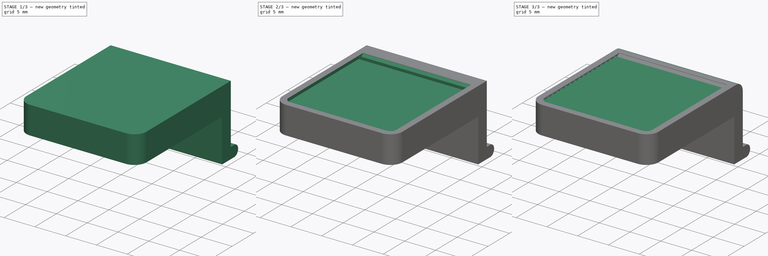
[diagram: build sequence overview — one tinted view per stage of 3, left to right]
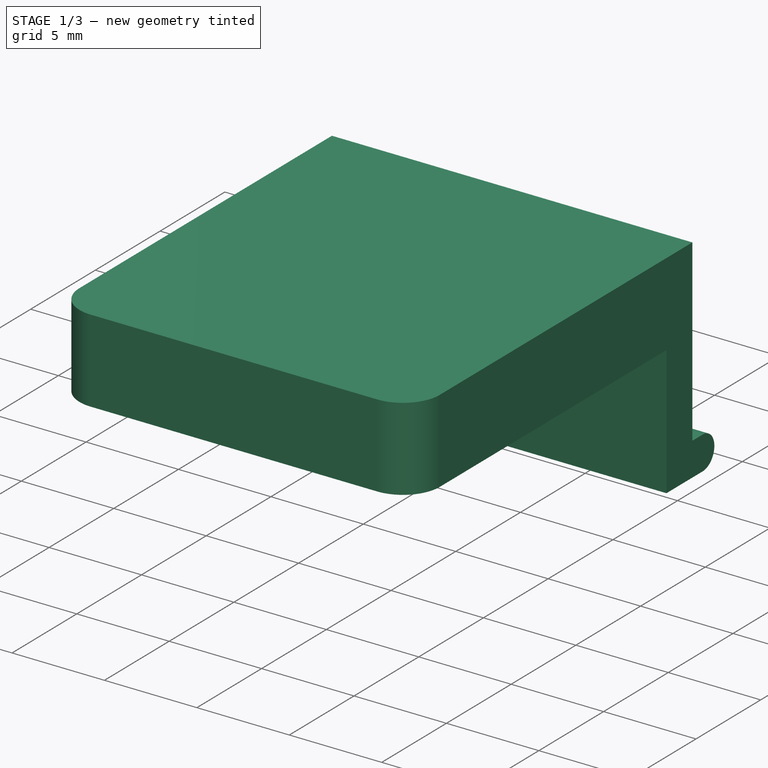
[diagram: stage 1 of 3 — iso view after this stage's code; geometry added in this stage tinted green]
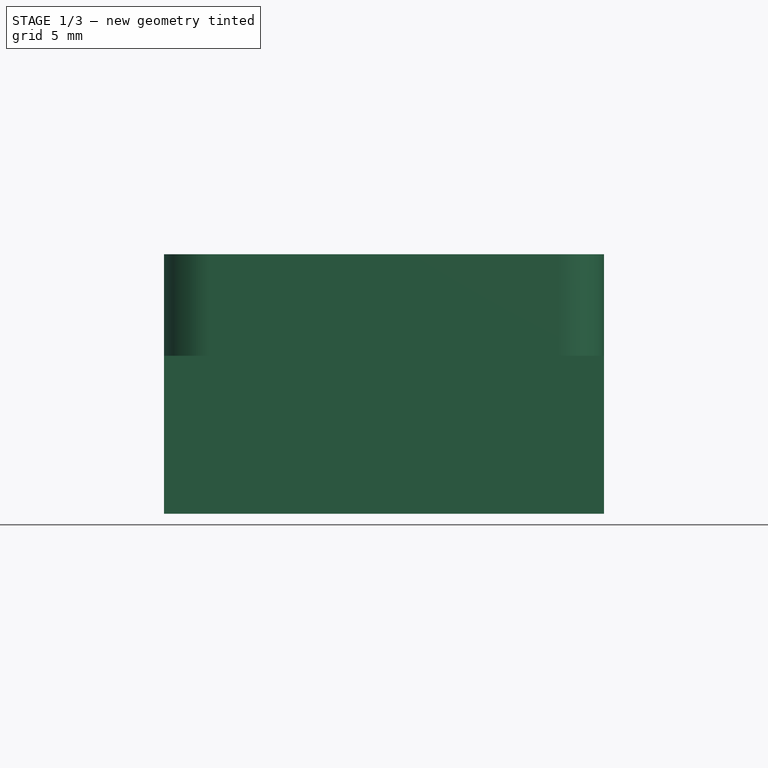
[diagram: stage 1 of 3 — front view after this stage's code; geometry added in this stage tinted green]
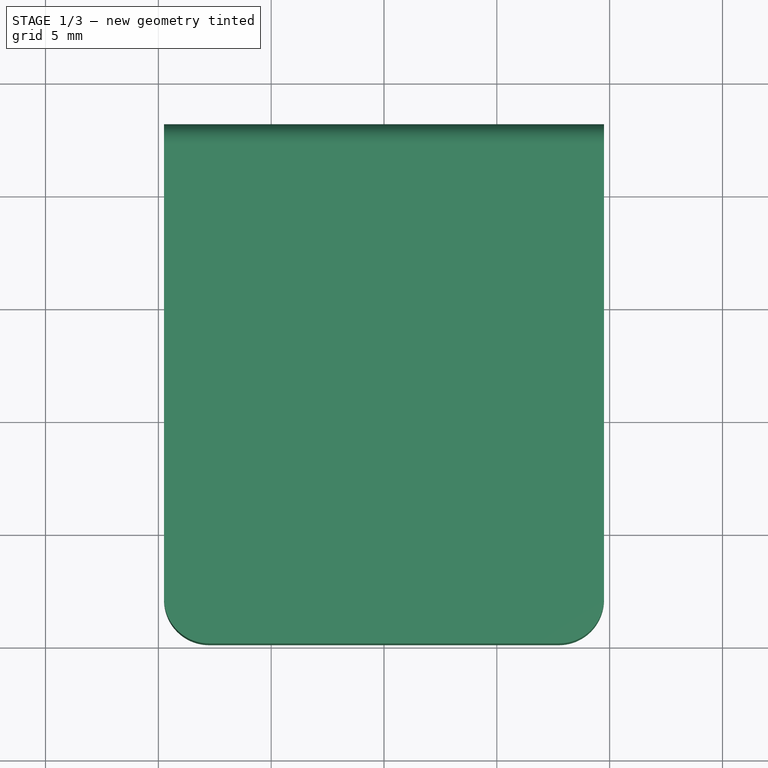
[diagram: stage 1 of 3 — top view after this stage's code; geometry added in this stage tinted green]
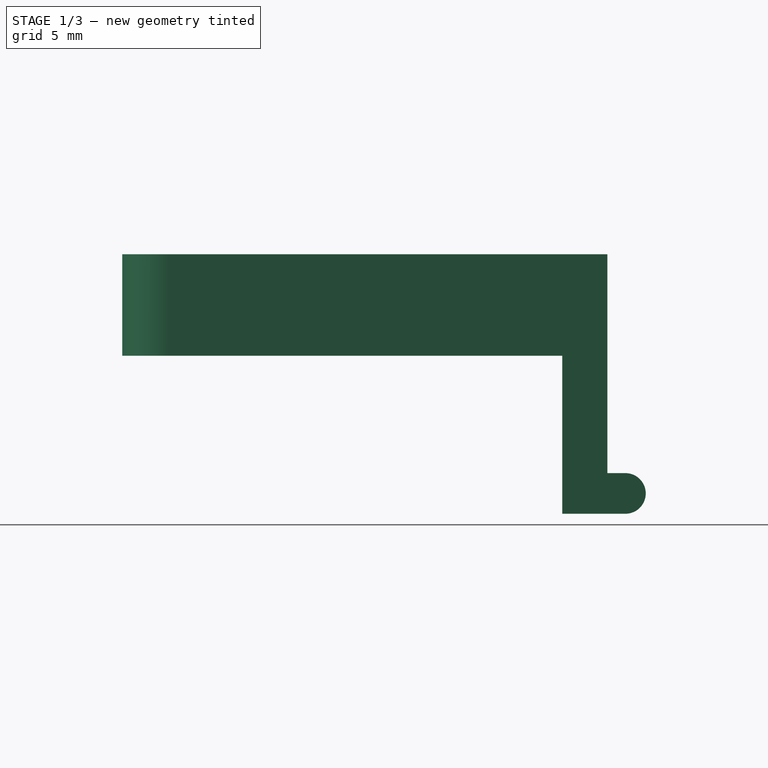
[diagram: stage 1 of 3 — right view after this stage's code; geometry added in this stage tinted green]
FCSTD DOCUMENT  (FreeCAD 0.19.4R1_voidlinux)
Label: alarm_button
License: All rights reserved
LicenseURL: http://en.wikipedia.org/wiki/All_rights_reserved
objects: Sketcher::SketchObject×3, PartDesign::Pad×2, PartDesign::Fillet×2, PartDesign::Pocket×1, PartDesign::LinearPattern×1, PartDesign::Point×1, PartDesign::Body×1, PartDesign::CoordinateSystem×1, App::Part×1
note: 17 computed .brp shape members not serialized (recipe doc carries the construction recipe); baked Part::Feature solids carry a one-line shape summary decoded from their .brp
EXTERNAL_REF file=master_animator.FCStd obj=Variables

FEATURE [Sketcher::SketchObject] Sketch
  FullyConstrained = true
  MapMode = 5
  Placement = pos=(0,0,0) rot=(0.57735,0.57735,0.57735;2.0944rad)
  Support = -> [YZ_Plane001]
  sketch-geometry (9):
    g0: LineSegment StartX=0 StartY=0 StartZ=0 EndX=21.5 EndY=0 EndZ=0
    g1: LineSegment StartX=21.5 StartY=0 StartZ=0 EndX=21.5 EndY=-9.7 EndZ=0
    g2: LineSegment StartX=21.5 StartY=-9.7 StartZ=0 EndX=22.3 EndY=-9.7 EndZ=0
    g3: ArcOfCircle CenterX=22.3 CenterY=-10.6 CenterZ=0 NormalX=0 NormalY=0 NormalZ=1 AngleXU=0 Radius=0.9 StartAngle=4.71239 EndAngle=7.85398
    g4: LineSegment StartX=22.3 StartY=-9.7 StartZ=0 EndX=22.3 EndY=-11.5 EndZ=0
    g5: LineSegment StartX=22.3 StartY=-11.5 StartZ=0 EndX=19.5 EndY=-11.5 EndZ=0
    g6: LineSegment StartX=19.5 StartY=-11.5 StartZ=0 EndX=19.5 EndY=-4.5 EndZ=0
    g7: LineSegment StartX=19.5 StartY=-4.5 StartZ=0 EndX=0 EndY=-4.5 EndZ=0
    g8: LineSegment StartX=0 StartY=-4.5 StartZ=0 EndX=0 EndY=0 EndZ=0
  constraints (25):
    c: Coincident(g0,g-1)
    c: Coincident(g1,g0)
    c: Vertical(g1)
    c: Coincident(g2,g1)
    c: Horizontal(g2)
    c: Tangent(g3,g2) = 1.5708
    c: Coincident(g4,g2)
    c: Coincident(g4,g3)
    c: Vertical(g4)
    c: Coincident(g5,g3)
    c: Horizontal(g5)
    c: Coincident(g6,g5)
    c: Vertical(g6)
    c: Coincident(g7,g6)
    c: PointOnObject(g7,g-2)
    c: Horizontal(g7)
    c: Coincident(g8,g7)
    c: Coincident(g8,g0)
    c: Distance(g4) = 1.8
    c: DistanceY(g3,g0) = 11.5
    c: Distance(g8) = 4.5
    c: Horizontal(g0)
    c: Distance(g0) = 21.5
    c: DistanceX(g6,g0) = 2
    c: DistanceX(g1,g3) = 0.8
FEATURE [PartDesign::Pad] Pad
  Direction = (1,1,1)
  Length = 19.5
  Length2 = 100
  Midplane = true
  Placement = pos=(0,0,0) rot=(0.57735,0.57735,0.57735;2.0944rad)
  Profile = -> Sketch
  Type = 0
FEATURE [PartDesign::Fillet] Fillet
  Base = -> Pad [Edge24,Edge23]
  BaseFeature = -> Pad
  Placement = pos=(0,0,0) rot=(0.57735,0.57735,0.57735;2.0944rad)
  Radius = 2
  SupportTransform = false
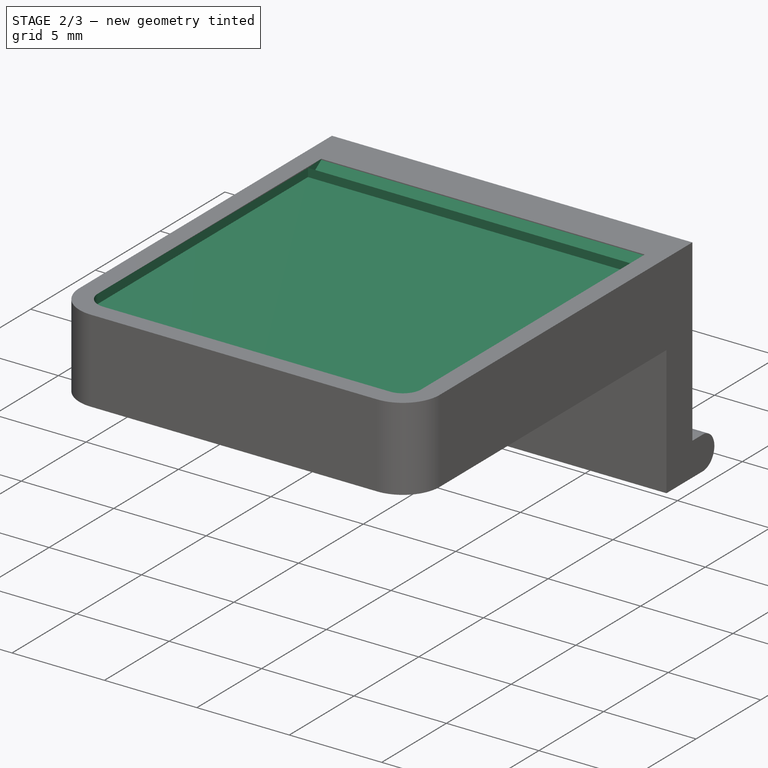
[diagram: stage 2 of 3 — iso view after this stage's code; geometry added in this stage tinted green]
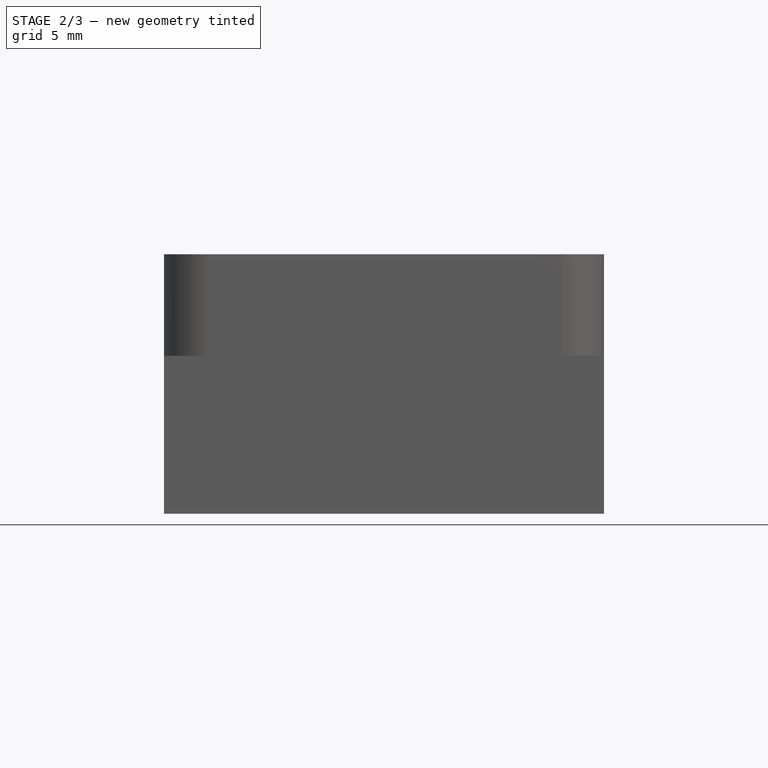
[diagram: stage 2 of 3 — front view after this stage's code; geometry added in this stage tinted green]
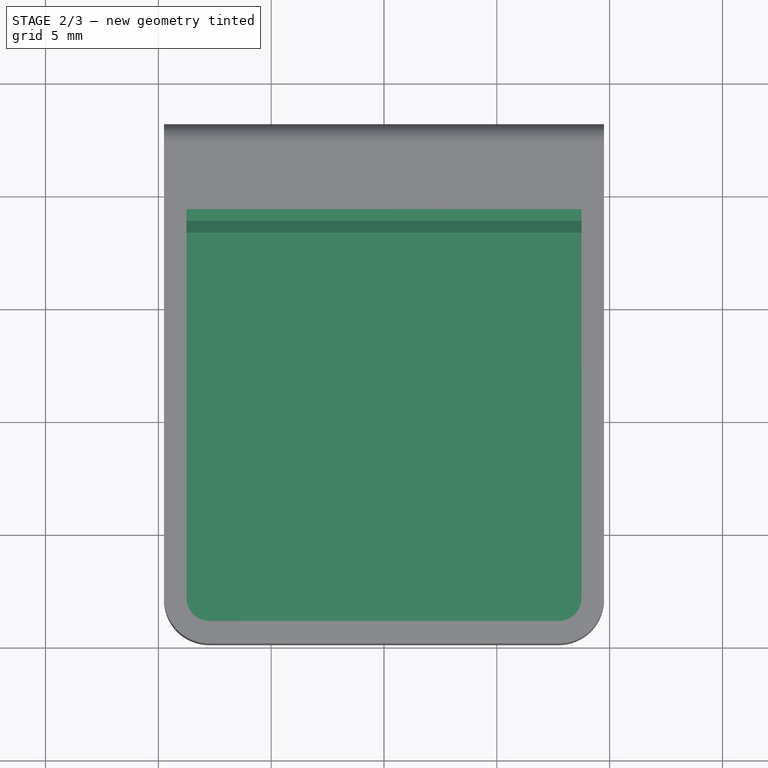
[diagram: stage 2 of 3 — top view after this stage's code; geometry added in this stage tinted green]
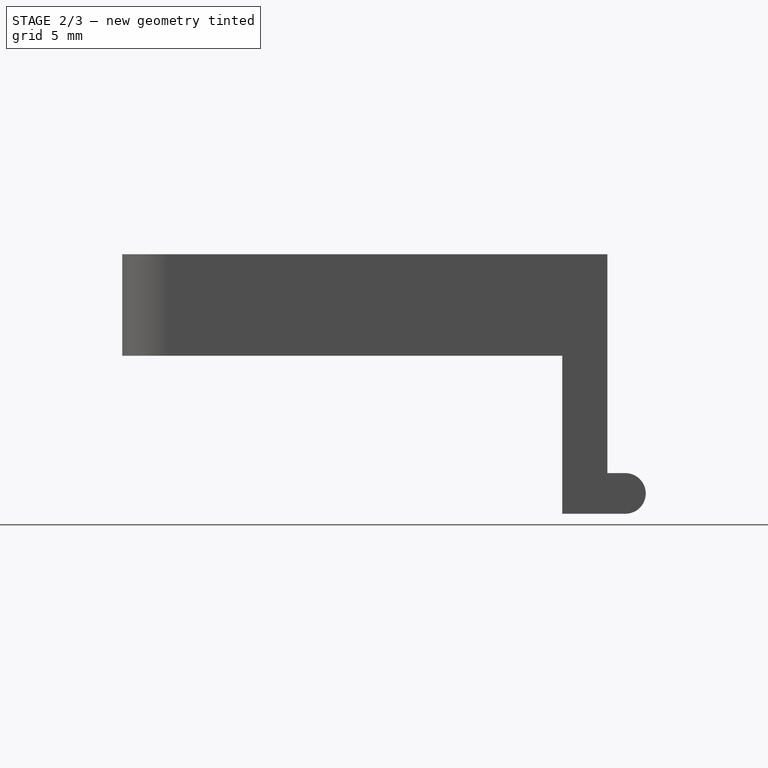
[diagram: stage 2 of 3 — right view after this stage's code; geometry added in this stage tinted green]
FEATURE [Sketcher::SketchObject] Sketch001
  ExternalGeometry = -> [Fillet]
  FullyConstrained = true
  MapMode = 5
  Placement = pos=(0,0,0) rot=(0,0,-1;1.5708rad)
  Support = -> [Fillet]
  sketch-geometry (6):
    g0: ArcOfCircle CenterX=-2 CenterY=7.75 CenterZ=0 NormalX=0 NormalY=0 NormalZ=1 AngleXU=0 Radius=1 StartAngle=6.28318 EndAngle=7.85398
    g1: ArcOfCircle CenterX=-2 CenterY=-7.75 CenterZ=0 NormalX=0 NormalY=0 NormalZ=1 AngleXU=0 Radius=0.999961 StartAngle=4.71239 EndAngle=6.28318
    g2: LineSegment StartX=-19.25 StartY=8.75 StartZ=0 EndX=-19.25 EndY=-8.74996 EndZ=0
    g3: LineSegment StartX=-19.25 StartY=-8.74996 StartZ=0 EndX=-2 EndY=-8.74996 EndZ=0
    g4: LineSegment StartX=-19.25 StartY=8.75 StartZ=0 EndX=-2 EndY=8.75 EndZ=0
    g5: LineSegment StartX=-1 StartY=7.75 StartZ=0 EndX=-1.00004 EndY=-7.75 EndZ=0
  constraints (14):
    c: Vertical(g2)
    c: Coincident(g3,g2)
    c: Horizontal(g3)
    c: Coincident(g4,g2)
    c: Horizontal(g4)
    c: Tangent(g4,g0) = 1.5708
    c: Tangent(g1,g3) = -1.5708
    c: Tangent(g5,g1) = 1.5708
    c: Tangent(g5,g0) = 1.5708
    c: Symmetric(g0,g1,g-1)
    c: DistanceY(g2,g-5) = 1
    c: DistanceX(g-5,g2) = 2.25
    c: DistanceX(g0,g-3) = 1
    c: Coincident(g0,g-3)
FEATURE [PartDesign::Pocket] Pocket
  BaseFeature = -> Fillet
  Length = 0.5
  Length2 = 100
  Placement = pos=(0,0,0) rot=(0.57735,0.57735,0.57735;2.0944rad)
  Profile = -> Sketch001
  Type = 0
FEATURE [Sketcher::SketchObject] Sketch002
  ExternalGeometry = -> [Pocket]
  FullyConstrained = true
  MapMode = 5
  Placement = pos=(-8.74996,1.9e-15,-5.3e-15) rot=(0.57735,0.57735,0.57735;2.0944rad)
  Support = -> [Pocket]
  expr: Constraints[6] = 17.5 / 17
  sketch-geometry (5):
    g0: LineSegment StartX=18.2206 StartY=-0.05 StartZ=0 EndX=18.2206 EndY=-0.5 EndZ=0
    g1: LineSegment StartX=18.2206 StartY=-0.05 StartZ=0 EndX=18.7353 EndY=-0.4 EndZ=0
    g2: LineSegment StartX=18.7353 StartY=-0.4 StartZ=0 EndX=19.25 EndY=-0.05 EndZ=0
    g3: LineSegment StartX=19.25 StartY=-0.5 StartZ=0 EndX=19.25 EndY=-0.05 EndZ=0
    g4: LineSegment StartX=19.25 StartY=-0.5 StartZ=0 EndX=18.2206 EndY=-0.5 EndZ=0
  constraints (14):
    c: PointOnObject(g0,g-3)
    c: Vertical(g0)
    c: Coincident(g1,g0)
    c: Coincident(g2,g1)
    c: Equal(g1,g2)
    c: DistanceY(g0,g1) = 0.1
    c: DistanceX(g0,g2) = 1.02941
    c: Coincident(g3,g2)
    c: Vertical(g3)
    c: DistanceY(g0,g2) = 0
    c: Coincident(g4,g3)
    c: Coincident(g4,g0)
    c: Coincident(g3,g-3)
    c: DistanceY(g2,g-4) = 0.05
FEATURE [PartDesign::Pad] Pad001
  BaseFeature = -> Pocket
  Direction = (1,1,1)
  Length = 10
  Length2 = 100
  Placement = pos=(0,0,0) rot=(0.57735,0.57735,0.57735;2.0944rad)
  Profile = -> Sketch002
  Type = 2
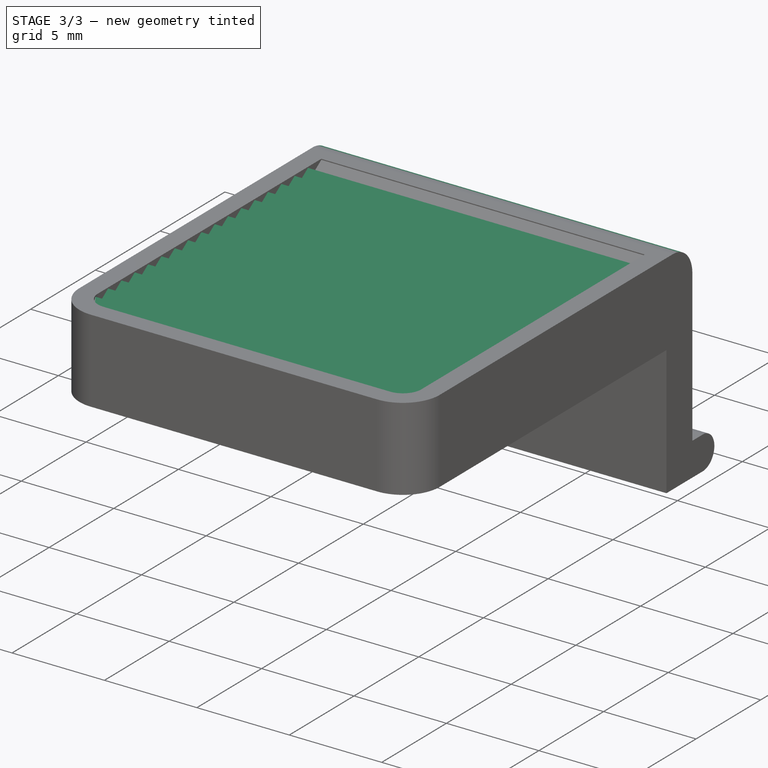
[diagram: stage 3 of 3 — iso view after this stage's code; geometry added in this stage tinted green]
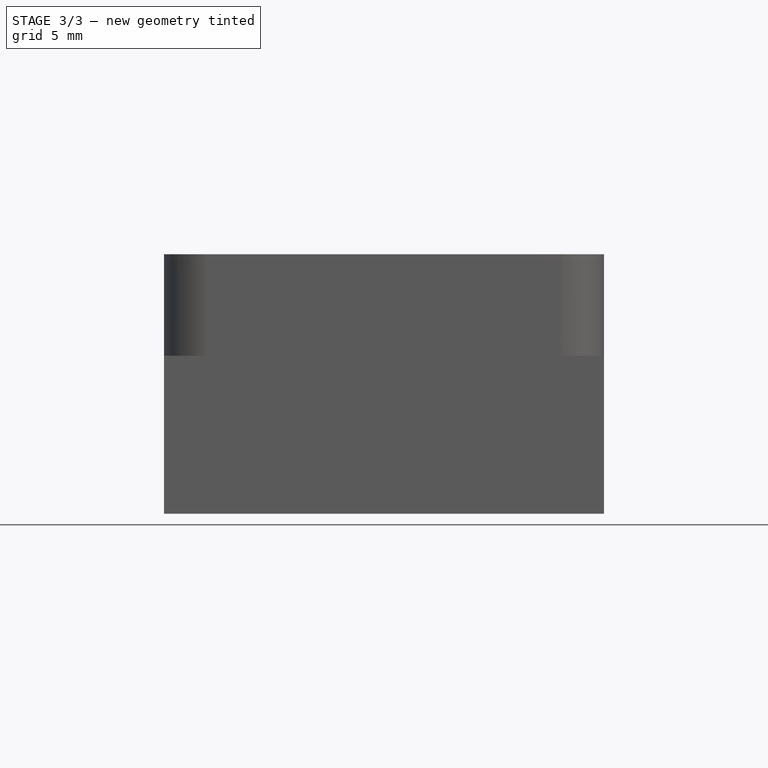
[diagram: stage 3 of 3 — front view after this stage's code; geometry added in this stage tinted green]
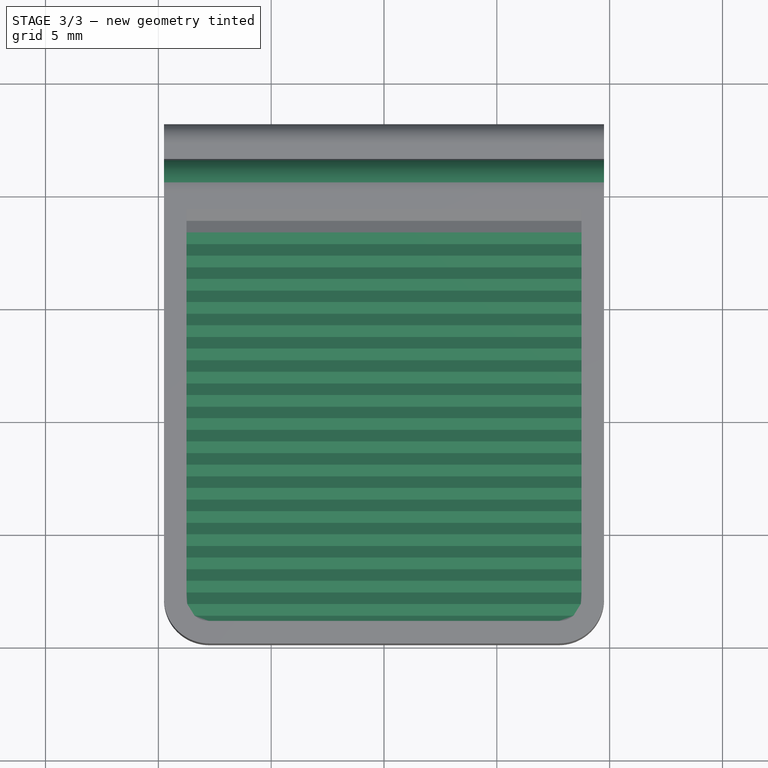
[diagram: stage 3 of 3 — top view after this stage's code; geometry added in this stage tinted green]
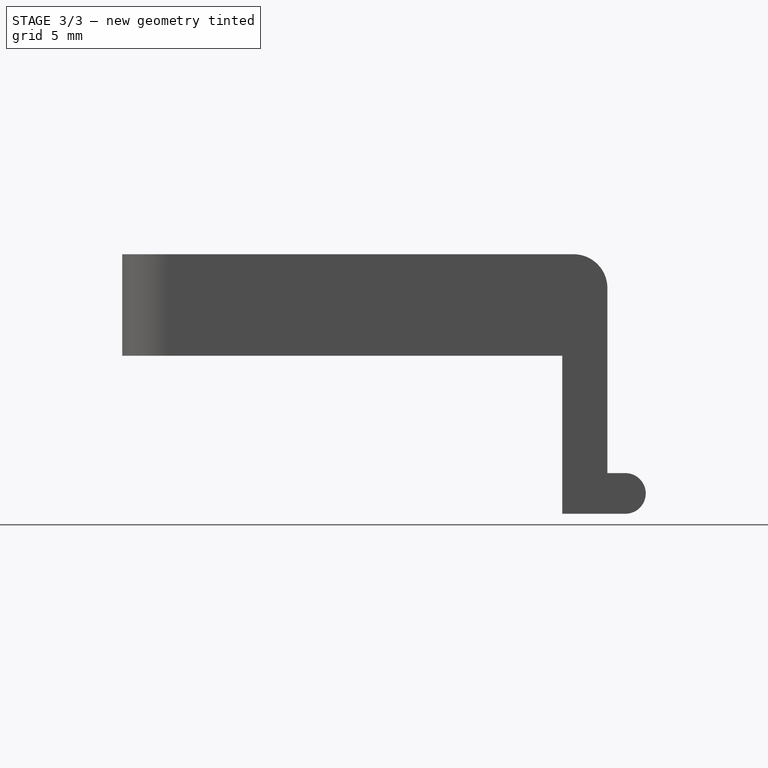
[diagram: stage 3 of 3 — right view after this stage's code; geometry added in this stage tinted green]
FEATURE [PartDesign::LinearPattern] LinearPattern
  BaseFeature = -> Pad001
  Direction = -> Y_Axis001
  Length = 17.5
  Occurrences = 18
  Originals = -> [Pad001]
  Placement = pos=(0,0,0) rot=(0.57735,0.57735,0.57735;2.0944rad)
  Reversed = true
FEATURE [PartDesign::Fillet] Fillet001
  Base = -> LinearPattern [Edge6]
  BaseFeature = -> LinearPattern
  Placement = pos=(0,0,0) rot=(0.57735,0.57735,0.57735;2.0944rad)
  Radius = 1.5
  SupportTransform = false
FEATURE [PartDesign::Point] DatumPoint
  AttacherType = Attacher::AttachEnginePoint
  MapMode = 37
  Placement = pos=(8.9e-15,19.5,-11.5) rot=(0,0,1;0rad)
  Support = -> [Fillet001]
FEATURE [PartDesign::Body] Body
  Group = -> [Sketch,Pad,Fillet,Sketch001,Pocket,Sketch002,Pad001,LinearPattern,Fillet001,DatumPoint]
  Origin = -> Origin001
  Tip = -> Fillet001
FEATURE [PartDesign::CoordinateSystem] LCS_bottom_edge
  AttacherType = Attacher::AttachEngine3D
  MapMode = 1
  Placement = pos=(8.9e-15,19.5,-11.5) rot=(0.57735,0.57735,0.57735;2.0944rad)
  Support = -> [DatumPoint]
  expr: .AttachmentOffset.Base.z = -master_animator#Variables.explode * 2
FEATURE [App::Part] Part  label="alarm_button"
  Group = -> [Body,LCS_bottom_edge]
  Origin = -> Origin
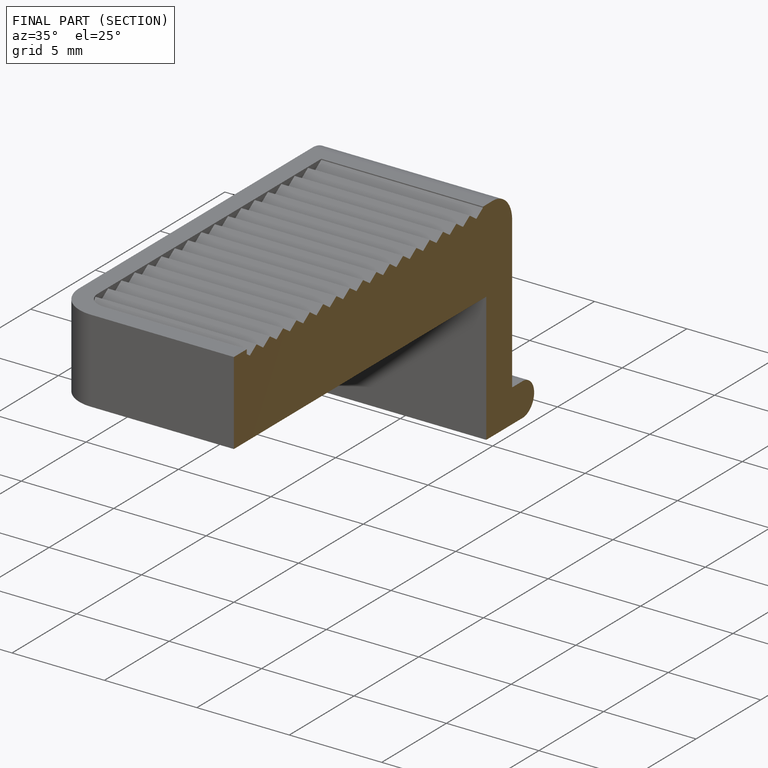
[diagram: finished part — half-section view (interior)]
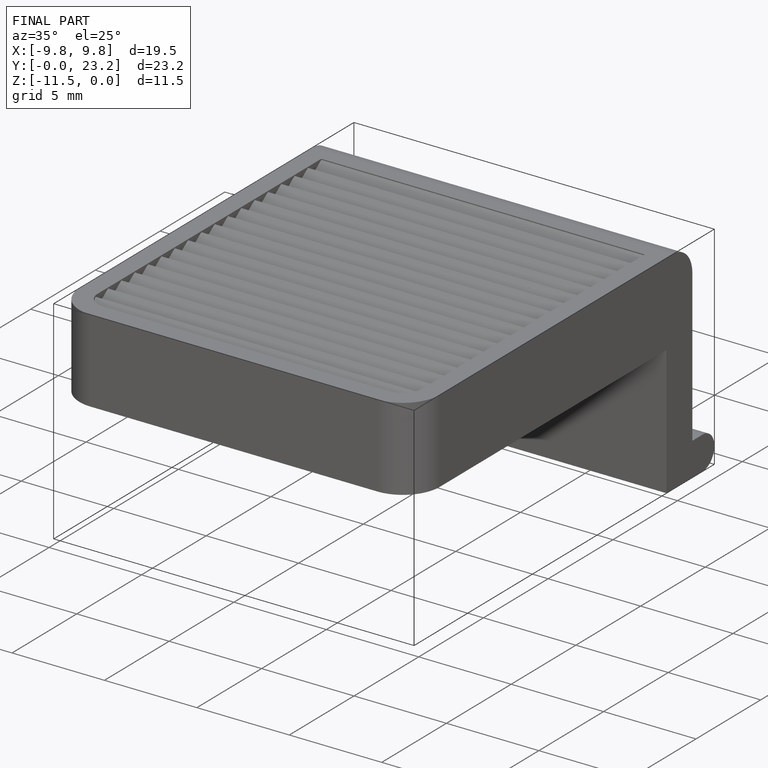
[diagram: finished part — iso view with bounding-box wireframe]
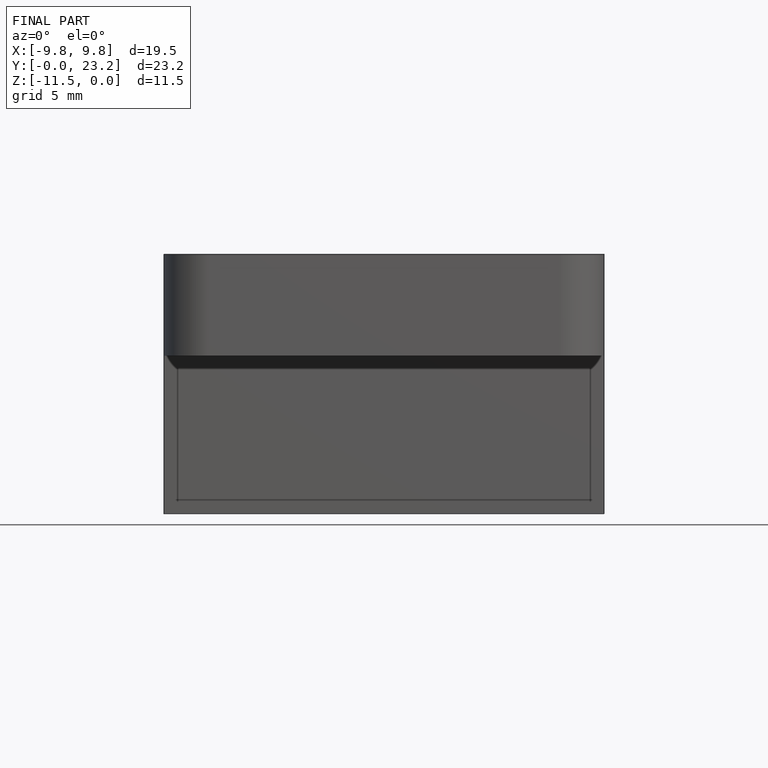
[diagram: finished part — front view with bounding-box wireframe]
